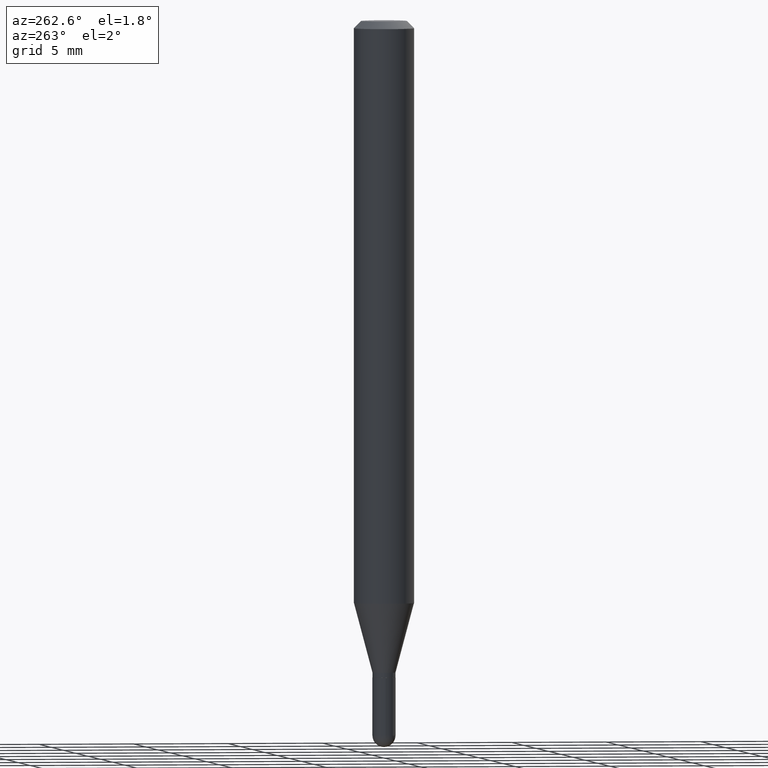
[diagram: clean part render]
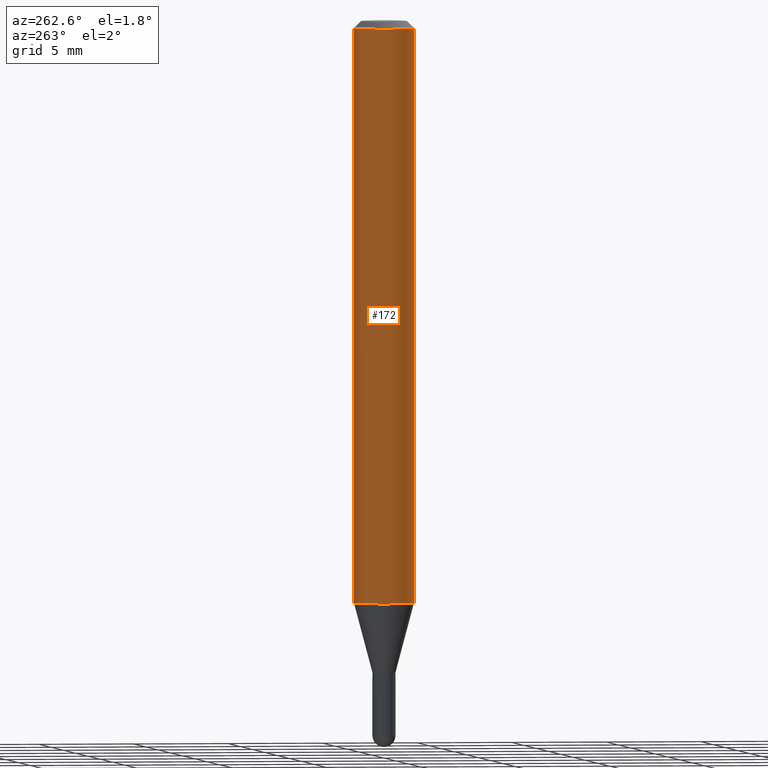
[diagram: same view with one face highlighted and labeled with its STEP entity id]
A machine part, auxiliary view. The second image highlights one B-rep face of the part: STEP entity #172.
In plain terms, the highlighted cylindrical surface (edge-blend (fillet) strip) has radius 1.5875 mm, axis along (-0, 0, 1).
Its self-contained STEP definition (entity closure, byte-faithful):
#1 = EDGE_LOOP ( 'NONE', ( #47, #358, #262, #488 ) ) ;
#39 = VECTOR ( 'NONE', #121, 39.37007874015748143 ) ;
#47 = ORIENTED_EDGE ( 'NONE', *, *, #274, .F. ) ;
#54 = DIRECTION ( 'NONE',  ( -2.445461197207060331E-29, 3.491492235332826977E-15, 1.000000000000000000 ) ) ;
#58 = DIRECTION ( 'NONE',  ( -2.445461197207060331E-29, 3.491492235332826977E-15, 1.000000000000000000 ) ) ;
#66 = AXIS2_PLACEMENT_3D ( 'NONE', #125, #54, #192 ) ;
#71 = VERTEX_POINT ( 'NONE', #174 ) ;
#72 = CARTESIAN_POINT ( 'NONE',  ( -4.364351673553623829E-16, -0.06250000000000421885, -1.202316043908598475 ) ) ;
#110 = CIRCLE ( 'NONE', #66, 0.06250000000000000000 ) ;
#121 = DIRECTION ( 'NONE',  ( -2.445461197207060331E-29, 3.491492235332826977E-15, 1.000000000000000000 ) ) ;
#125 = CARTESIAN_POINT ( 'NONE',  ( 2.940217232157978499E-29, -4.197877131722955059E-15, -1.202316043908598697 ) ) ;
#151 = EDGE_CURVE ( 'NONE', #71, #405, #354, .T. ) ;
#164 = VERTEX_POINT ( 'NONE', #294 ) ;
#172 = ADVANCED_FACE ( 'NONE', ( #300 ), #393, .T. ) ;
#174 = CARTESIAN_POINT ( 'NONE',  ( 4.440892098500920998E-16, 0.06249999999999993755, -0.01500000000000054588 ) ) ;
#179 = CARTESIAN_POINT ( 'NONE',  ( 3.668191795810671124E-31, -5.237238352999354998E-17, -0.01500000000000032904 ) ) ;
#188 = AXIS2_PLACEMENT_3D ( 'NONE', #179, #58, #208 ) ;
#190 = DIRECTION ( 'NONE',  ( -2.445461197207060331E-29, 3.491492235332826977E-15, 1.000000000000000000 ) ) ;
#192 = DIRECTION ( 'NONE',  ( -6.982962677686265922E-15, -1.000000000000000000, 4.370956789862821150E-15 ) ) ;
#208 = DIRECTION ( 'NONE',  ( -6.982962677686265922E-15, -1.000000000000000000, 3.483106191921935554E-15 ) ) ;
#233 = VECTOR ( 'NONE', #190, 39.37007874015748143 ) ;
#262 = ORIENTED_EDGE ( 'NONE', *, *, #453, .T. ) ;
#274 = EDGE_CURVE ( 'NONE', #164, #71, #353, .T. ) ;
#276 = LINE ( 'NONE', #331, #39 ) ;
#294 = CARTESIAN_POINT ( 'NONE',  ( 4.440892098500918040E-16, 0.06249999999999577421, -1.202316043908599141 ) ) ;
#300 = FACE_OUTER_BOUND ( 'NONE', #1, .T. ) ;
#301 = AXIS2_PLACEMENT_3D ( 'NONE', #325, #484, #334 ) ;
#302 = VERTEX_POINT ( 'NONE', #72 ) ;
#317 = CARTESIAN_POINT ( 'NONE',  ( -4.364351673553912750E-16, -0.06250000000000005551, -0.01500000000000011047 ) ) ;
#325 = CARTESIAN_POINT ( 'NONE',  ( 0.000000000000000000, 0.000000000000000000, 0.000000000000000000 ) ) ;
#331 = CARTESIAN_POINT ( 'NONE',  ( -4.364351673553916201E-16, -0.06250000000000000000, 2.182182647083016860E-16 ) ) ;
#334 = DIRECTION ( 'NONE',  ( -6.982962677686265922E-15, -1.000000000000000000, 3.491492235332826977E-15 ) ) ;
#353 = LINE ( 'NONE', #509, #233 ) ;
#354 = CIRCLE ( 'NONE', #188, 0.06250000000000000000 ) ;
#358 = ORIENTED_EDGE ( 'NONE', *, *, #474, .T. ) ;
#393 = CYLINDRICAL_SURFACE ( 'NONE', #301, 0.06250000000000000000 ) ;
#405 = VERTEX_POINT ( 'NONE', #317 ) ;
#453 = EDGE_CURVE ( 'NONE', #302, #405, #276, .T. ) ;
#474 = EDGE_CURVE ( 'NONE', #164, #302, #110, .T. ) ;
#484 = DIRECTION ( 'NONE',  ( -2.445461197207060331E-29, 3.491492235332826977E-15, 1.000000000000000000 ) ) ;
#488 = ORIENTED_EDGE ( 'NONE', *, *, #151, .F. ) ;
#509 = CARTESIAN_POINT ( 'NONE',  ( 4.440892098500625669E-16, 0.06250000000000000000, -2.182182647083016860E-16 ) ) ;